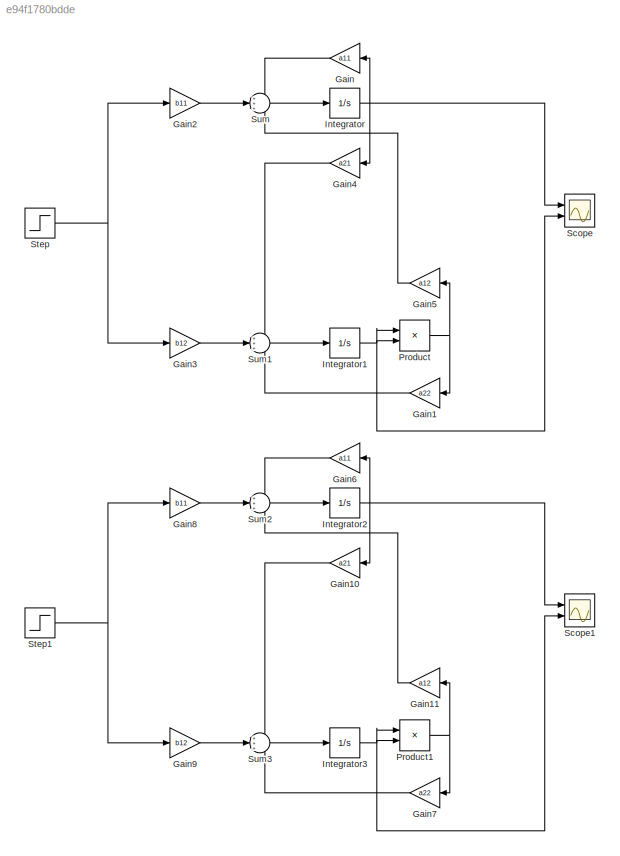
MODEL slx_e94f1780bdde
KIND model
CONFIG AbsTol = auto
CONFIG EnableMultiTasking = off
CONFIG FixedStep = auto
CONFIG MaxStep = 1e-3
CONFIG MinStep = auto
CONFIG RelTol = 1e-3
CONFIG SampleTimeConstraint = Unconstrained
CONFIG SolverName = VariableStepAuto
CONFIG StartTime = 0.0
CONFIG StopTime = 5
BLOCK [Gain] Gain
  Gain = a11
  NameLocation = top
BLOCK [Gain] Gain1
  Gain = a22
  NameLocation = top
BLOCK [Gain] Gain10
  Gain = a21
  NameLocation = top
BLOCK [Gain] Gain11
  Gain = a12
  NameLocation = top
BLOCK [Gain] Gain2
  Gain = b11
BLOCK [Gain] Gain3
  Gain = b12
BLOCK [Gain] Gain4
  Gain = a21
  NameLocation = top
BLOCK [Gain] Gain5
  Gain = a12
  NameLocation = top
BLOCK [Gain] Gain6
  Gain = a11
  NameLocation = top
BLOCK [Gain] Gain7
  Gain = a22
  NameLocation = top
BLOCK [Gain] Gain8
  Gain = b11
BLOCK [Gain] Gain9
  Gain = b12
BLOCK [Integrator] Integrator
  Ports = [1, 1]
BLOCK [Integrator] Integrator1
  Ports = [1, 1]
BLOCK [Integrator] Integrator2
  Ports = [1, 1]
BLOCK [Integrator] Integrator3
  Ports = [1, 1]
BLOCK [Product] Product
  Ports = [2, 1]
BLOCK [Product] Product1
  Ports = [2, 1]
BLOCK [Scope] Scope
  Floating = off
  NumInputPorts = 2
  Ports = [2]
  ScopeSpecificationString = Simulink.scopes.TimeScopeBlockCfg('CurrentConfiguration', extmgr.ConfigurationSet(extmgr.Configuration('Core','General UI',true,'FigureColor',[1 1 1]),extmgr.Configuration('Core','Source UI',true),extmgr.Configuration('Sources','WiredSimulink',true),extmgr.Configuration('Visuals','Time Domain',true,'SerializedDisplays',{struct('MinYLimReal','-0.08698','MaxYLimReal','0.78278','YLabelReal','y1, y2',...<+1641ch>
BLOCK [Scope] Scope1
  Floating = off
  NumInputPorts = 2
  Ports = [2]
  ScopeSpecificationString = Simulink.scopes.TimeScopeBlockCfg('CurrentConfiguration', extmgr.ConfigurationSet(extmgr.Configuration('Core','General UI',true,'FigureColor',[1 1 1]),extmgr.Configuration('Core','Source UI',true),extmgr.Configuration('Sources','WiredSimulink',true,'DataLoggingVariableName','ScopeData1'),extmgr.Configuration('Visuals','Time Domain',true,'SerializedDisplays',{struct('MinYLimReal','-0.11315','MaxYLi...<+1682ch>
BLOCK [Step] Step
  After = u1
  SampleTime = 0
  Time = 0
BLOCK [Step] Step1
  After = u2
  SampleTime = 0
  Time = 0
BLOCK [Sum] Sum
  Inputs = +++
  Ports = [3, 1]
BLOCK [Sum] Sum1
  Inputs = +++
  Ports = [3, 1]
BLOCK [Sum] Sum2
  Inputs = +++
  Ports = [3, 1]
BLOCK [Sum] Sum3
  Inputs = +++
  Ports = [3, 1]
LINE Gain10:1 -> Sum3:1
LINE Gain11:1 -> Sum2:3
LINE Gain1:1 -> Sum1:3
LINE Gain2:1 -> Sum:2
LINE Gain3:1 -> Sum1:2
LINE Gain4:1 -> Sum1:1
LINE Gain5:1 -> Sum:3
LINE Gain6:1 -> Sum2:1
LINE Gain7:1 -> Sum3:3
LINE Gain8:1 -> Sum2:2
LINE Gain9:1 -> Sum3:2
LINE Gain:1 -> Sum:1
NET Integrator1:1 -> Product:1, Product:2, Scope:2
NET Integrator2:1 -> Gain10:1, Gain6:1, Scope1:1
NET Integrator3:1 -> Product1:1, Product1:2, Scope1:2
NET Integrator:1 -> Gain4:1, Gain:1, Scope:1
NET Product1:1 -> Gain11:1, Gain7:1
NET Product:1 -> Gain1:1, Gain5:1
NET Step1:1 -> Gain8:1, Gain9:1
NET Step:1 -> Gain2:1, Gain3:1
LINE Sum1:1 -> Integrator1:1
LINE Sum2:1 -> Integrator2:1
LINE Sum3:1 -> Integrator3:1
LINE Sum:1 -> Integrator:1
note: NET lines group one-source signal fan-out (src -> all destinations, sorted); 1:1 wires keep LINE
